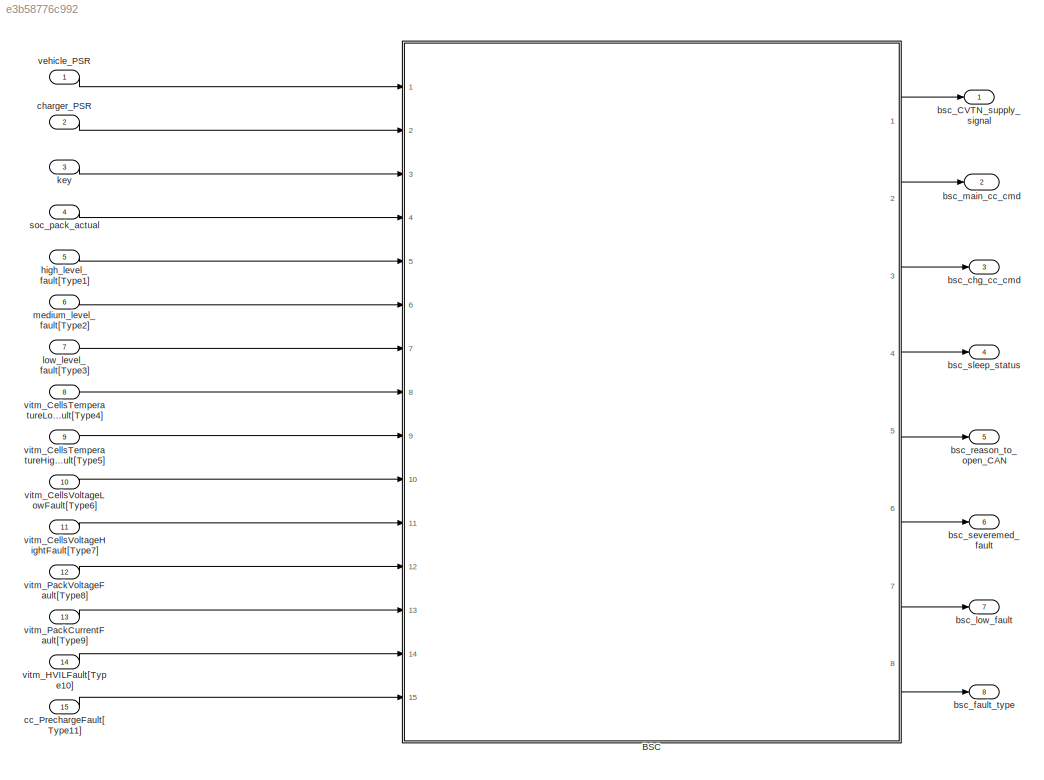
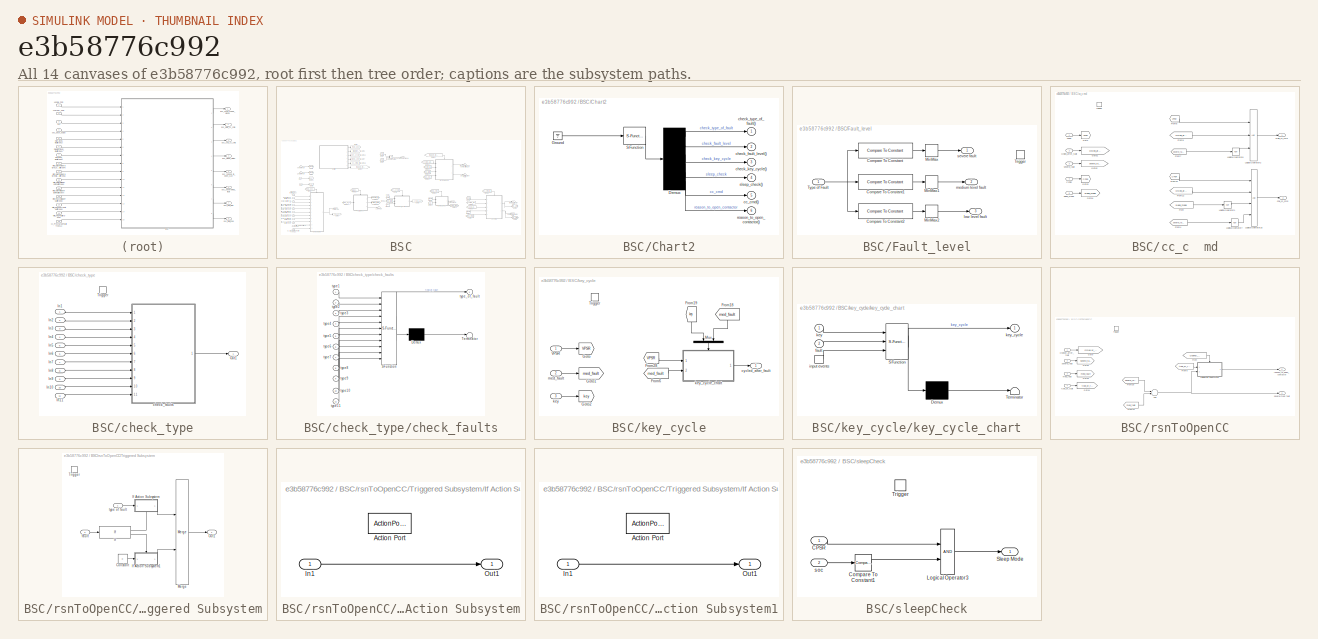
[diagram: thumbnail index - all 14 canvases of the model, root first then tree order]
MODEL slx_e3b58776c992
KIND model
CONFIG AbsTol = auto
CONFIG FixedStep = auto
CONFIG MaxStep = auto
CONFIG MinStep = auto
CONFIG RelTol = 1e-3
CONFIG SampleTimeConstraint = Unconstrained
CONFIG Solver = ode4
CONFIG SolverMode = Auto
CONFIG SolverName = ode4
CONFIG StartTime = 0.0
CONFIG StopTime = inf
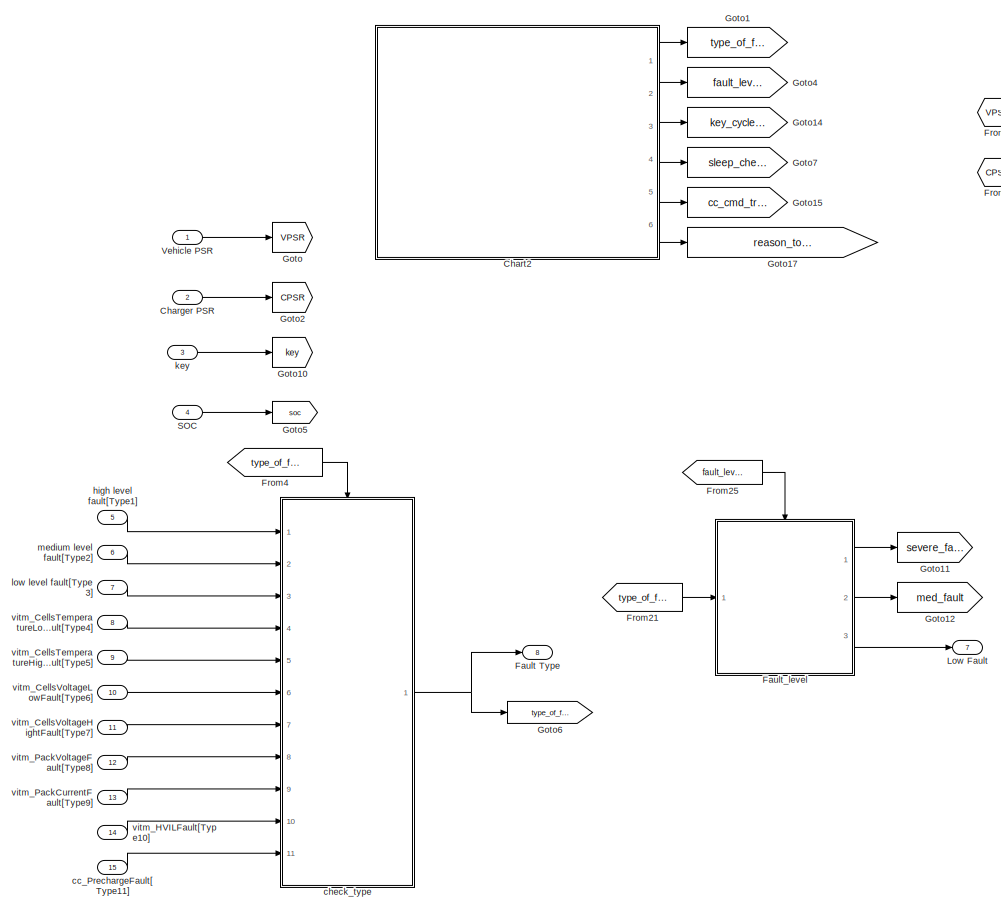
[diagram: BSC - part 1/2, left side, full height]
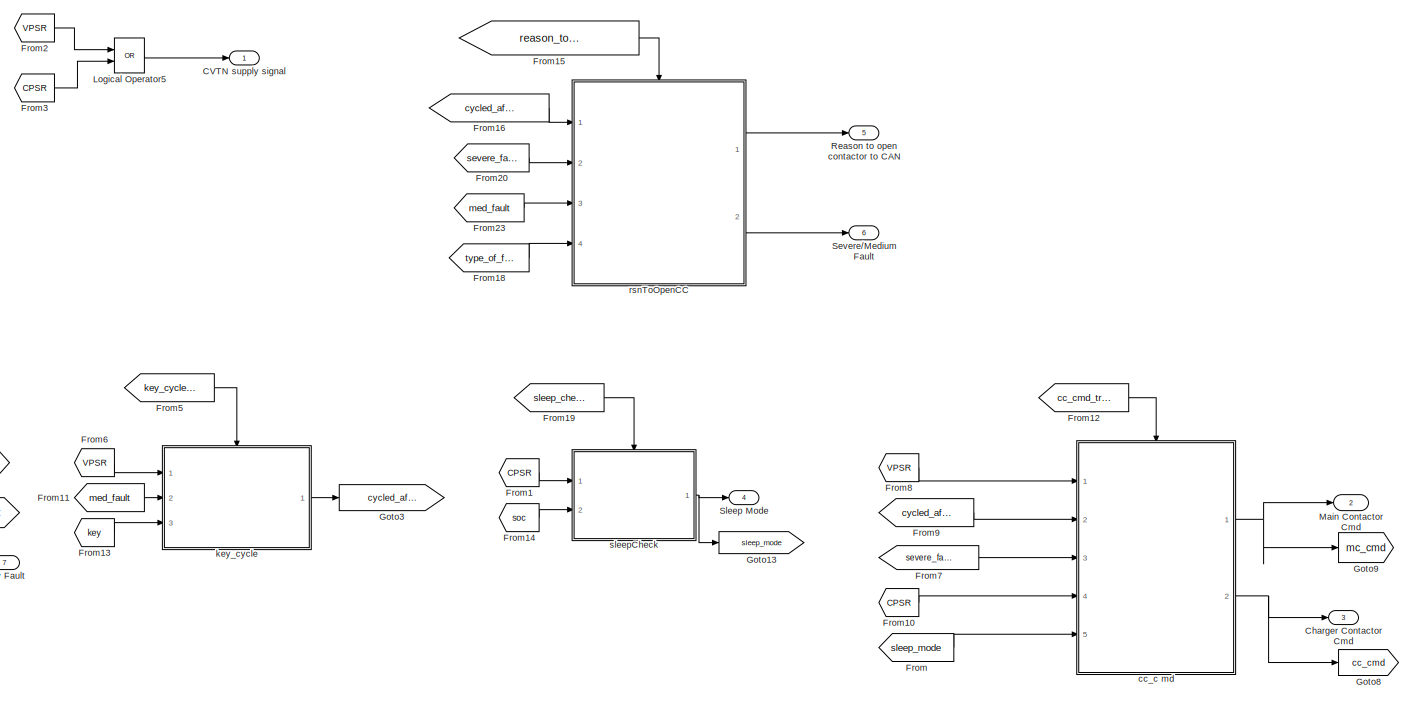
[diagram: BSC - part 2/2, right side, full height]
BLOCK [SubSystem] BSC
  Ports = [15, 8]
  RequestExecContextInheritance = off
  TreatAsAtomicUnit = on
  Variant = off
BLOCK [Outport] BSC/CVTN supply signal
  IconDisplay = Port number
  OutDataTypeStr = boolean
  PortDimensions = 1
  SamplingMode = Sample based
  SignalType = real
BLOCK [Outport] BSC/Charger Contactor Cmd
  IconDisplay = Port number
  OutDataTypeStr = boolean
  Port = 3
  PortDimensions = 1
  SamplingMode = Sample based
  SignalType = real
BLOCK [Inport] BSC/Charger PSR
  IconDisplay = Port number
  OutDataTypeStr = uint8
  Port = 2
  PortDimensions = 1
  SamplingMode = Sample based
  SignalType = real
BLOCK [SubSystem] BSC/Chart2
  ErrorFcn = Stateflow.Translate.translate
  PermitHierarchicalResolution = ExplicitOnly
  Ports = [0, 6]
  RequestExecContextInheritance = off
  SFBlockType = Chart
  TreatAsAtomicUnit = on
  Variant = off
BLOCK [Demux] BSC/Chart2/ Demux 
  Outputs = 6
  Ports = [1, 6]
BLOCK [Ground] BSC/Chart2/ Ground 
BLOCK [S-Function] BSC/Chart2/ SFunction 
  EnableBusSupport = on
  FunctionName = sf_sfun
  PortCounts = [1 1]
  Ports = [1, 1]
  SFunctionDeploymentMode = off
  Tag = Stateflow S-Function BSC_codegen 2
BLOCK [Outport] BSC/Chart2/cc_cmd()
  IconDisplay = Port number
  Port = 5
BLOCK [Outport] BSC/Chart2/check_fault_level()
  IconDisplay = Port number
  Port = 2
BLOCK [Outport] BSC/Chart2/check_key_cycle()
  IconDisplay = Port number
  Port = 3
BLOCK [Outport] BSC/Chart2/check_type_of_fault()
  IconDisplay = Port number
BLOCK [Outport] BSC/Chart2/reason_to_open_contactor()
  IconDisplay = Port number
  Port = 6
BLOCK [Outport] BSC/Chart2/sleep_check()
  IconDisplay = Port number
  Port = 4
BLOCK [Outport] BSC/Fault Type
  IconDisplay = Port number
  OutDataTypeStr = uint8
  Port = 8
  PortDimensions = 1
  SamplingMode = Sample based
  SignalType = real
BLOCK [SubSystem] BSC/Fault_level
  Ports = [1, 3, 0, 1]
  RequestExecContextInheritance = off
  Variant = off
BLOCK [Reference] BSC/Fault_level/Compare To Constant  REF=simulink/Logic and Bit
Operations/Compare
To Constant
  Ports = [1, 1]
  SourceBlock = simulink/Logic and Bit\nOperations/Compare\nTo Constant
  SourceType = Compare To Constant
BLOCK [Reference] BSC/Fault_level/Compare To Constant1  REF=simulink/Logic and Bit
Operations/Compare
To Constant
  Ports = [1, 1]
  SourceBlock = simulink/Logic and Bit\nOperations/Compare\nTo Constant
  SourceType = Compare To Constant
BLOCK [Reference] BSC/Fault_level/Compare To Constant2  REF=simulink/Logic and Bit
Operations/Compare
To Constant
  Ports = [1, 1]
  SourceBlock = simulink/Logic and Bit\nOperations/Compare\nTo Constant
  SourceType = Compare To Constant
BLOCK [MinMax] BSC/Fault_level/MinMax
  Function = max
  InputSameDT = off
  Ports = [1, 1]
  SaturateOnIntegerOverflow = off
BLOCK [MinMax] BSC/Fault_level/MinMax1
  Function = max
  InputSameDT = off
  Ports = [1, 1]
  SaturateOnIntegerOverflow = off
BLOCK [MinMax] BSC/Fault_level/MinMax2
  Function = max
  InputSameDT = off
  Ports = [1, 1]
  SaturateOnIntegerOverflow = off
BLOCK [TriggerPort] BSC/Fault_level/Trigger
  PortDimensions = 1
  Ports = []
  StatesWhenEnabling = held
  TriggerType = function-call
BLOCK [Inport] BSC/Fault_level/Type of Fault
  IconDisplay = Port number
BLOCK [Outport] BSC/Fault_level/low level fault
  IconDisplay = Port number
  Port = 3
BLOCK [Outport] BSC/Fault_level/medium level fault
  IconDisplay = Port number
  Port = 2
BLOCK [Outport] BSC/Fault_level/severe fault
  IconDisplay = Port number
BLOCK [From] BSC/From
  GotoTag = sleep_mode
BLOCK [From] BSC/From1
  GotoTag = CPSR
BLOCK [From] BSC/From10
  GotoTag = CPSR
BLOCK [From] BSC/From11
  GotoTag = med_fault
BLOCK [From] BSC/From12
  GotoTag = cc_cmd_trig
BLOCK [From] BSC/From13
  GotoTag = key
BLOCK [From] BSC/From14
  GotoTag = soc
BLOCK [From] BSC/From15
  GotoTag = reason_to_open_contactor_trig
BLOCK [From] BSC/From16
  GotoTag = cycled_after_fault
BLOCK [From] BSC/From18
  GotoTag = type_of_fault
BLOCK [From] BSC/From19
  GotoTag = sleep_check_trig
BLOCK [From] BSC/From2
  GotoTag = VPSR
BLOCK [From] BSC/From20
  GotoTag = severe_fault
BLOCK [From] BSC/From21
  GotoTag = type_of_fault
BLOCK [From] BSC/From23
  GotoTag = med_fault
BLOCK [From] BSC/From25
  GotoTag = fault_level_trig
BLOCK [From] BSC/From3
  GotoTag = CPSR
BLOCK [From] BSC/From4
  GotoTag = type_of_fault_trig
BLOCK [From] BSC/From5
  GotoTag = key_cycle_trig
BLOCK [From] BSC/From6
  GotoTag = VPSR
BLOCK [From] BSC/From7
  GotoTag = severe_fault
BLOCK [From] BSC/From8
  GotoTag = VPSR
BLOCK [From] BSC/From9
  GotoTag = cycled_after_fault
BLOCK [Goto] BSC/Goto
  GotoTag = VPSR
BLOCK [Goto] BSC/Goto1
  GotoTag = type_of_fault_trig
BLOCK [Goto] BSC/Goto10
  GotoTag = key
BLOCK [Goto] BSC/Goto11
  GotoTag = severe_fault
BLOCK [Goto] BSC/Goto12
  GotoTag = med_fault
BLOCK [Goto] BSC/Goto13
  GotoTag = sleep_mode
BLOCK [Goto] BSC/Goto14
  GotoTag = key_cycle_trig
BLOCK [Goto] BSC/Goto15
  GotoTag = cc_cmd_trig
BLOCK [Goto] BSC/Goto17
  GotoTag = reason_to_open_contactor_trig
BLOCK [Goto] BSC/Goto2
  GotoTag = CPSR
BLOCK [Goto] BSC/Goto3
  GotoTag = cycled_after_fault
BLOCK [Goto] BSC/Goto4
  GotoTag = fault_level_trig
BLOCK [Goto] BSC/Goto5
  GotoTag = soc
BLOCK [Goto] BSC/Goto6
  GotoTag = type_of_fault
BLOCK [Goto] BSC/Goto7
  GotoTag = sleep_check_trig
BLOCK [Goto] BSC/Goto8
  GotoTag = cc_cmd
BLOCK [Goto] BSC/Goto9
  GotoTag = mc_cmd
BLOCK [Logic] BSC/Logical Operator5
  AllPortsSameDT = off
  Operator = OR
  OutDataTypeStr = boolean
  Ports = [2, 1]
BLOCK [Outport] BSC/Low Fault
  IconDisplay = Port number
  OutDataTypeStr = uint8
  Port = 7
  PortDimensions = 1
  SamplingMode = Sample based
  SignalType = real
BLOCK [Outport] BSC/Main Contactor Cmd
  IconDisplay = Port number
  OutDataTypeStr = boolean
  Port = 2
  PortDimensions = 1
  SamplingMode = Sample based
  SignalType = real
BLOCK [Outport] BSC/Reason to open contactor to CAN
  IconDisplay = Port number
  OutDataTypeStr = uint8
  Port = 5
  PortDimensions = 1
  SamplingMode = Sample based
  SignalType = real
BLOCK [Inport] BSC/SOC
  IconDisplay = Port number
  OutDataTypeStr = double
  Port = 4
  PortDimensions = 1
  SamplingMode = Sample based
  SignalType = real
BLOCK [Outport] BSC/Severe//Medium Fault
  IconDisplay = Port number
  OutDataTypeStr = uint8
  Port = 6
  PortDimensions = 1
  SamplingMode = Sample based
  SignalType = real
BLOCK [Outport] BSC/Sleep Mode
  IconDisplay = Port number
  OutDataTypeStr = boolean
  Port = 4
  PortDimensions = 1
  SamplingMode = Sample based
  SignalType = real
BLOCK [Inport] BSC/Vehicle PSR
  IconDisplay = Port number
  OutDataTypeStr = uint8
  PortDimensions = 1
  SamplingMode = Sample based
  SignalType = real
BLOCK [Inport] BSC/cc_PrechargeFault[Type11]
  IconDisplay = Port number
  OutDataTypeStr = uint8
  Port = 15
  PortDimensions = 1
  SamplingMode = Sample based
  SignalType = real
BLOCK [SubSystem] BSC/cc_c  md
  Ports = [5, 2, 0, 1]
  RequestExecContextInheritance = off
  Variant = off
BLOCK [Inport] BSC/cc_c  md/CPSR
  IconDisplay = Port number
  Port = 4
BLOCK [From] BSC/cc_c  md/From
  GotoTag = sleep_mode
BLOCK [From] BSC/cc_c  md/From10
  GotoTag = CPSR
BLOCK [From] BSC/cc_c  md/From12
  GotoTag = cycled_after_fault
BLOCK [From] BSC/cc_c  md/From4
  GotoTag = severe_fault
BLOCK [From] BSC/cc_c  md/From7
  GotoTag = severe_fault
BLOCK [From] BSC/cc_c  md/From8
  GotoTag = VPSR
BLOCK [From] BSC/cc_c  md/From9
  GotoTag = cycled_after_fault
BLOCK [Goto] BSC/cc_c  md/Goto
  GotoTag = VPSR
BLOCK [Goto] BSC/cc_c  md/Goto1
  GotoTag = cycled_after_fault
BLOCK [Goto] BSC/cc_c  md/Goto2
  GotoTag = severe_fault
BLOCK [Goto] BSC/cc_c  md/Goto3
  GotoTag = CPSR
BLOCK [Goto] BSC/cc_c  md/Goto4
  GotoTag = sleep_mode
BLOCK [Logic] BSC/cc_c  md/Logical Operator1
  AllPortsSameDT = off
  Inputs = 1
  Operator = NOT
  OutDataTypeStr = boolean
  Ports = [1, 1]
BLOCK [Logic] BSC/cc_c  md/Logical Operator16
  AllPortsSameDT = off
  Inputs = 4
  OutDataTypeStr = boolean
  Ports = [4, 1]
BLOCK [Logic] BSC/cc_c  md/Logical Operator2
  AllPortsSameDT = off
  Inputs = 3
  OutDataTypeStr = boolean
  Ports = [3, 1]
BLOCK [Logic] BSC/cc_c  md/Logical Operator7
  AllPortsSameDT = off
  Inputs = 1
  Operator = NOT
  OutDataTypeStr = boolean
  Ports = [1, 1]
BLOCK [Logic] BSC/cc_c  md/Logical Operator8
  AllPortsSameDT = off
  Inputs = 1
  Operator = NOT
  OutDataTypeStr = boolean
  Ports = [1, 1]
BLOCK [TriggerPort] BSC/cc_c  md/Trigger
  PortDimensions = 1
  Ports = []
  StatesWhenEnabling = held
  TriggerType = function-call
BLOCK [Inport] BSC/cc_c  md/VPSR
  IconDisplay = Port number
BLOCK [Outport] BSC/cc_c  md/chg_cc_cmd
  IconDisplay = Port number
  Port = 2
BLOCK [Inport] BSC/cc_c  md/cycled_after_fault
  IconDisplay = Port number
  Port = 2
BLOCK [Outport] BSC/cc_c  md/main_cc_cmd
  IconDisplay = Port number
BLOCK [Inport] BSC/cc_c  md/severe_fault
  IconDisplay = Port number
  Port = 3
BLOCK [Inport] BSC/cc_c  md/sleep_mode
  IconDisplay = Port number
  Port = 5
BLOCK [SubSystem] BSC/check_type
  Ports = [11, 1, 0, 1]
  RequestExecContextInheritance = off
  Variant = off
BLOCK [Inport] BSC/check_type/In1
  IconDisplay = Port number
BLOCK [Inport] BSC/check_type/In10
  IconDisplay = Port number
  Port = 10
BLOCK [Inport] BSC/check_type/In11
  IconDisplay = Port number
  Port = 11
BLOCK [Inport] BSC/check_type/In2
  IconDisplay = Port number
  Port = 2
BLOCK [Inport] BSC/check_type/In3
  IconDisplay = Port number
  Port = 3
BLOCK [Inport] BSC/check_type/In4
  IconDisplay = Port number
  Port = 4
BLOCK [Inport] BSC/check_type/In5
  IconDisplay = Port number
  Port = 5
BLOCK [Inport] BSC/check_type/In6
  IconDisplay = Port number
  Port = 6
BLOCK [Inport] BSC/check_type/In7
  IconDisplay = Port number
  Port = 7
BLOCK [Inport] BSC/check_type/In8
  IconDisplay = Port number
  Port = 8
BLOCK [Inport] BSC/check_type/In9
  IconDisplay = Port number
  Port = 9
BLOCK [Outport] BSC/check_type/Out1
  IconDisplay = Port number
BLOCK [TriggerPort] BSC/check_type/Trigger
  PortDimensions = 1
  Ports = []
  StatesWhenEnabling = held
  TriggerType = function-call
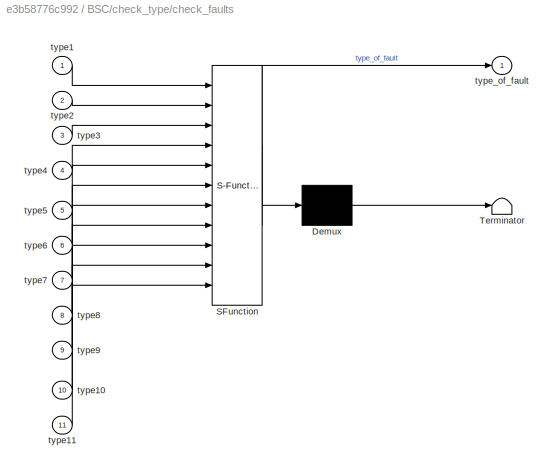
BLOCK [SubSystem] BSC/check_type/check_faults
  ErrorFcn = Stateflow.Translate.translate
  PermitHierarchicalResolution = ExplicitOnly
  Ports = [11, 1]
  RequestExecContextInheritance = off
  SFBlockType = Chart
  TreatAsAtomicUnit = on
  Variant = off
BLOCK [Demux] BSC/check_type/check_faults/ Demux 
  Outputs = 1
  Ports = [1, 1]
BLOCK [S-Function] BSC/check_type/check_faults/ SFunction 
  EnableBusSupport = on
  FunctionName = sf_sfun
  PortCounts = [11 2]
  Ports = [11, 2]
  SFunctionDeploymentMode = off
  Tag = Stateflow S-Function BSC_codegen 3
BLOCK [Terminator] BSC/check_type/check_faults/ Terminator 
BLOCK [Inport] BSC/check_type/check_faults/type1
  IconDisplay = Port number
BLOCK [Inport] BSC/check_type/check_faults/type10
  IconDisplay = Port number
  Port = 10
BLOCK [Inport] BSC/check_type/check_faults/type11
  IconDisplay = Port number
  Port = 11
BLOCK [Inport] BSC/check_type/check_faults/type2
  IconDisplay = Port number
  Port = 2
BLOCK [Inport] BSC/check_type/check_faults/type3
  IconDisplay = Port number
  Port = 3
BLOCK [Inport] BSC/check_type/check_faults/type4
  IconDisplay = Port number
  Port = 4
BLOCK [Inport] BSC/check_type/check_faults/type5
  IconDisplay = Port number
  Port = 5
BLOCK [Inport] BSC/check_type/check_faults/type6
  IconDisplay = Port number
  Port = 6
BLOCK [Inport] BSC/check_type/check_faults/type7
  IconDisplay = Port number
  Port = 7
BLOCK [Inport] BSC/check_type/check_faults/type8
  IconDisplay = Port number
  Port = 8
BLOCK [Inport] BSC/check_type/check_faults/type9
  IconDisplay = Port number
  Port = 9
BLOCK [Outport] BSC/check_type/check_faults/type_of_fault
  IconDisplay = Port number
BLOCK [Inport] BSC/high level fault[Type1]
  IconDisplay = Port number
  OutDataTypeStr = uint8
  Port = 5
  PortDimensions = 1
  SamplingMode = Sample based
  SignalType = real
BLOCK [Inport] BSC/key
  IconDisplay = Port number
  OutDataTypeStr = uint8
  Port = 3
  PortDimensions = 1
  SamplingMode = Sample based
  SignalType = real
BLOCK [SubSystem] BSC/key_cycle
  Ports = [3, 1, 0, 1]
  RequestExecContextInheritance = off
  Variant = off
BLOCK [From] BSC/key_cycle/From18
  GotoTag = med_fault
BLOCK [From] BSC/key_cycle/From19
  GotoTag = key
BLOCK [From] BSC/key_cycle/From28
  GotoTag = VPSR
BLOCK [From] BSC/key_cycle/From6
  GotoTag = med_fault
BLOCK [Goto] BSC/key_cycle/Goto
  GotoTag = VPSR
BLOCK [Goto] BSC/key_cycle/Goto1
  GotoTag = med_fault
BLOCK [Goto] BSC/key_cycle/Goto2
  GotoTag = key
BLOCK [Mux] BSC/key_cycle/Mux
  DisplayOption = bar
  Inputs = 2
  Ports = [2, 1]
BLOCK [TriggerPort] BSC/key_cycle/Trigger
  PortDimensions = 1
  Ports = []
  StatesWhenEnabling = held
  TriggerType = function-call
BLOCK [Inport] BSC/key_cycle/VPSR
  IconDisplay = Port number
BLOCK [Outport] BSC/key_cycle/cycled_after_fault
  IconDisplay = Port number
BLOCK [Inport] BSC/key_cycle/key
  IconDisplay = Port number
  Port = 3
BLOCK [SubSystem] BSC/key_cycle/key_cycle_chart
  ErrorFcn = Stateflow.Translate.translate
  PermitHierarchicalResolution = ExplicitOnly
  Ports = [2, 1, 0, 1]
  RequestExecContextInheritance = off
  SFBlockType = Chart
  TreatAsAtomicUnit = on
  Variant = off
BLOCK [Demux] BSC/key_cycle/key_cycle_chart/ Demux 
  Outputs = 1
  Ports = [1, 1]
BLOCK [S-Function] BSC/key_cycle/key_cycle_chart/ SFunction 
  EnableBusSupport = on
  FunctionName = sf_sfun
  PortCounts = [3 2]
  Ports = [3, 2]
  SFunctionDeploymentMode = off
  Tag = Stateflow S-Function BSC_codegen 1
BLOCK [Terminator] BSC/key_cycle/key_cycle_chart/ Terminator 
BLOCK [Inport] BSC/key_cycle/key_cycle_chart/fault
  IconDisplay = Port number
  Port = 2
BLOCK [TriggerPort] BSC/key_cycle/key_cycle_chart/input events
  Ports = [0, 1]
  ShowOutputPort = on
  StatesWhenEnabling = held
  TriggerType = either
BLOCK [Inport] BSC/key_cycle/key_cycle_chart/key
  IconDisplay = Port number
BLOCK [Outport] BSC/key_cycle/key_cycle_chart/key_cycle
  IconDisplay = Port number
BLOCK [Inport] BSC/key_cycle/med_fault
  IconDisplay = Port number
  Port = 2
BLOCK [Inport] BSC/low level fault[Type3]
  IconDisplay = Port number
  OutDataTypeStr = uint8
  Port = 7
  PortDimensions = 1
  SamplingMode = Sample based
  SignalType = real
BLOCK [Inport] BSC/medium level fault[Type2]
  IconDisplay = Port number
  OutDataTypeStr = uint8
  Port = 6
  PortDimensions = 1
  SamplingMode = Sample based
  SignalType = real
BLOCK [SubSystem] BSC/rsnToOpenCC
  Ports = [4, 2, 0, 1]
  RequestExecContextInheritance = off
  Variant = off
BLOCK [Sum] BSC/rsnToOpenCC/Add
  AccumDataTypeStr = uint8
  OutDataTypeStr = uint8
  Ports = [2, 1]
  SaturateOnIntegerOverflow = off
BLOCK [From] BSC/rsnToOpenCC/From
  GotoTag = cycleKey_after_fault
BLOCK [From] BSC/rsnToOpenCC/From20
  GotoTag = severe_fault
BLOCK [From] BSC/rsnToOpenCC/From23
  GotoTag = med_fault
BLOCK [From] BSC/rsnToOpenCC/From5
  GotoTag = type_of_fault
BLOCK [Goto] BSC/rsnToOpenCC/Goto
  GotoTag = cycleKey_after_fault
BLOCK [Goto] BSC/rsnToOpenCC/Goto2
  GotoTag = severe_fault
BLOCK [Goto] BSC/rsnToOpenCC/Goto3
  GotoTag = med_fault
BLOCK [Goto] BSC/rsnToOpenCC/Goto4
  GotoTag = type_of_fault
BLOCK [TriggerPort] BSC/rsnToOpenCC/Trigger
  PortDimensions = 1
  Ports = []
  StatesWhenEnabling = held
  TriggerType = function-call
BLOCK [SubSystem] BSC/rsnToOpenCC/Triggered Subsystem
  Ports = [2, 1, 0, 1]
  RequestExecContextInheritance = off
  TreatAsAtomicUnit = on
  Variant = off
BLOCK [Constant] BSC/rsnToOpenCC/Triggered Subsystem/Constant
  OutDataTypeStr = uint8
  Value = 0
BLOCK [If] BSC/rsnToOpenCC/Triggered Subsystem/If
  Ports = [1, 2]
BLOCK [SubSystem] BSC/rsnToOpenCC/Triggered Subsystem/If Action Subsystem
  Ports = [1, 1, 0, 0, 0, 0, 0, 1]
  RequestExecContextInheritance = off
  TreatAsAtomicUnit = on
  Variant = off
BLOCK [ActionPort] BSC/rsnToOpenCC/Triggered Subsystem/If Action Subsystem/Action Port
  ActionType = then
BLOCK [Inport] BSC/rsnToOpenCC/Triggered Subsystem/If Action Subsystem/In1
  IconDisplay = Port number
BLOCK [Outport] BSC/rsnToOpenCC/Triggered Subsystem/If Action Subsystem/Out1
  IconDisplay = Port number
BLOCK [SubSystem] BSC/rsnToOpenCC/Triggered Subsystem/If Action Subsystem1
  Ports = [1, 1, 0, 0, 0, 0, 0, 1]
  RequestExecContextInheritance = off
  TreatAsAtomicUnit = on
  Variant = off
BLOCK [ActionPort] BSC/rsnToOpenCC/Triggered Subsystem/If Action Subsystem1/Action Port
  ActionType = else
BLOCK [Inport] BSC/rsnToOpenCC/Triggered Subsystem/If Action Subsystem1/In1
  IconDisplay = Port number
BLOCK [Outport] BSC/rsnToOpenCC/Triggered Subsystem/If Action Subsystem1/Out1
  IconDisplay = Port number
BLOCK [Merge] BSC/rsnToOpenCC/Triggered Subsystem/Merge
  Ports = [2, 1]
BLOCK [Outport] BSC/rsnToOpenCC/Triggered Subsystem/Out1
  IconDisplay = Port number
BLOCK [TriggerPort] BSC/rsnToOpenCC/Triggered Subsystem/Trigger
  Ports = []
  StatesWhenEnabling = held
  TriggerType = either
BLOCK [Inport] BSC/rsnToOpenCC/Triggered Subsystem/fault
  IconDisplay = Port number
  Port = 2
BLOCK [Inport] BSC/rsnToOpenCC/Triggered Subsystem/type of fault
  IconDisplay = Port number
BLOCK [Inport] BSC/rsnToOpenCC/cycleKey_after_fault
  IconDisplay = Port number
BLOCK [Inport] BSC/rsnToOpenCC/med_fault
  IconDisplay = Port number
  Port = 3
BLOCK [Outport] BSC/rsnToOpenCC/reason_to_open_contactor
  IconDisplay = Port number
BLOCK [Outport] BSC/rsnToOpenCC/severe//med fault
  IconDisplay = Port number
  Port = 2
BLOCK [Inport] BSC/rsnToOpenCC/severe_fault
  IconDisplay = Port number
  Port = 2
BLOCK [Inport] BSC/rsnToOpenCC/type_of_fault
  IconDisplay = Port number
  Port = 4
BLOCK [SubSystem] BSC/sleepCheck
  Ports = [2, 1, 0, 1]
  RequestExecContextInheritance = off
  Variant = off
BLOCK [Inport] BSC/sleepCheck/CPSR
  IconDisplay = Port number
BLOCK [Reference] BSC/sleepCheck/Compare To Constant1  REF=simulink/Logic and Bit
Operations/Compare
To Constant
  Ports = [1, 1]
  SourceBlock = simulink/Logic and Bit\nOperations/Compare\nTo Constant
  SourceType = Compare To Constant
BLOCK [Logic] BSC/sleepCheck/Logical Operator3
  AllPortsSameDT = off
  OutDataTypeStr = boolean
  Ports = [2, 1]
BLOCK [Outport] BSC/sleepCheck/Sleep Mode
  IconDisplay = Port number
  OutDataTypeStr = boolean
  PortDimensions = 1
  SamplingMode = Sample based
  SignalType = real
BLOCK [TriggerPort] BSC/sleepCheck/Trigger
  PortDimensions = 1
  Ports = []
  StatesWhenEnabling = held
  TriggerType = function-call
BLOCK [Inport] BSC/sleepCheck/soc
  IconDisplay = Port number
  Port = 2
BLOCK [Inport] BSC/vitm_CellsTemperatureHighFault[Type5]
  IconDisplay = Port number
  OutDataTypeStr = uint8
  Port = 9
  PortDimensions = 1
  SamplingMode = Sample based
  SignalType = real
BLOCK [Inport] BSC/vitm_CellsTemperatureLowFault[Type4]
  IconDisplay = Port number
  OutDataTypeStr = uint8
  Port = 8
  PortDimensions = 1
  SamplingMode = Sample based
  SignalType = real
BLOCK [Inport] BSC/vitm_CellsVoltageHightFault[Type7]
  IconDisplay = Port number
  OutDataTypeStr = uint8
  Port = 11
  PortDimensions = 1
  SamplingMode = Sample based
  SignalType = real
BLOCK [Inport] BSC/vitm_CellsVoltageLowFault[Type6]
  IconDisplay = Port number
  OutDataTypeStr = uint8
  Port = 10
  PortDimensions = 1
  SamplingMode = Sample based
  SignalType = real
BLOCK [Inport] BSC/vitm_HVILFault[Type10]
  IconDisplay = Port number
  OutDataTypeStr = uint8
  Port = 14
  PortDimensions = 1
  SamplingMode = Sample based
  SignalType = real
BLOCK [Inport] BSC/vitm_PackCurrentFault[Type9]
  IconDisplay = Port number
  OutDataTypeStr = uint8
  Port = 13
  PortDimensions = 1
  SamplingMode = Sample based
  SignalType = real
BLOCK [Inport] BSC/vitm_PackVoltageFault[Type8]
  IconDisplay = Port number
  OutDataTypeStr = uint8
  Port = 12
  PortDimensions = 1
  SamplingMode = Sample based
  SignalType = real
BLOCK [Outport] bsc_CVTN_supply_signal
  IconDisplay = Port number
  OutDataTypeStr = boolean
  PortDimensions = 1
  SamplingMode = Sample based
  SignalType = real
BLOCK [Outport] bsc_chg_cc_cmd
  IconDisplay = Port number
  OutDataTypeStr = boolean
  Port = 3
  PortDimensions = 1
  SamplingMode = Sample based
  SignalType = real
BLOCK [Outport] bsc_fault_type
  IconDisplay = Port number
  OutDataTypeStr = uint8
  Port = 8
  PortDimensions = 1
  SamplingMode = Sample based
  SignalType = real
BLOCK [Outport] bsc_low_fault
  IconDisplay = Port number
  OutDataTypeStr = uint8
  Port = 7
  PortDimensions = 1
  SamplingMode = Sample based
  SignalType = real
BLOCK [Outport] bsc_main_cc_cmd
  IconDisplay = Port number
  OutDataTypeStr = boolean
  Port = 2
  PortDimensions = 1
  SamplingMode = Sample based
  SignalType = real
BLOCK [Outport] bsc_reason_to_open_CAN
  IconDisplay = Port number
  OutDataTypeStr = uint8
  Port = 5
  PortDimensions = 1
  SamplingMode = Sample based
  SignalType = real
BLOCK [Outport] bsc_severemed_fault
  IconDisplay = Port number
  OutDataTypeStr = uint8
  Port = 6
  PortDimensions = 1
  SamplingMode = Sample based
  SignalType = real
BLOCK [Outport] bsc_sleep_status
  IconDisplay = Port number
  OutDataTypeStr = boolean
  Port = 4
  PortDimensions = 1
  SamplingMode = Sample based
  SignalType = real
BLOCK [Inport] cc_PrechargeFault[Type11]
  IconDisplay = Port number
  OutDataTypeStr = uint8
  Port = 15
  PortDimensions = 1
  SamplingMode = Sample based
  SignalType = real
BLOCK [Inport] charger_PSR
  IconDisplay = Port number
  OutDataTypeStr = uint8
  Port = 2
  PortDimensions = 1
  SamplingMode = Sample based
  SignalType = real
BLOCK [Inport] high_level_fault[Type1]
  IconDisplay = Port number
  OutDataTypeStr = uint8
  Port = 5
  PortDimensions = 1
  SamplingMode = Sample based
  SignalType = real
BLOCK [Inport] key
  IconDisplay = Port number
  OutDataTypeStr = uint8
  Port = 3
  PortDimensions = 1
  SamplingMode = Sample based
  SignalType = real
BLOCK [Inport] low_level_fault[Type3]
  IconDisplay = Port number
  OutDataTypeStr = uint8
  Port = 7
  PortDimensions = 1
  SamplingMode = Sample based
  SignalType = real
BLOCK [Inport] medium_level_fault[Type2]
  IconDisplay = Port number
  OutDataTypeStr = uint8
  Port = 6
  PortDimensions = 1
  SamplingMode = Sample based
  SignalType = real
BLOCK [Inport] soc_pack_actual
  IconDisplay = Port number
  OutDataTypeStr = double
  Port = 4
  PortDimensions = 1
  SamplingMode = Sample based
  SignalType = real
BLOCK [Inport] vehicle_PSR
  IconDisplay = Port number
  OutDataTypeStr = uint8
  PortDimensions = 1
  SamplingMode = Sample based
  SignalType = real
BLOCK [Inport] vitm_CellsTemperatureHighFault[Type5]
  IconDisplay = Port number
  OutDataTypeStr = uint8
  Port = 9
  PortDimensions = 1
  SamplingMode = Sample based
  SignalType = real
BLOCK [Inport] vitm_CellsTemperatureLowFault[Type4]
  IconDisplay = Port number
  OutDataTypeStr = uint8
  Port = 8
  PortDimensions = 1
  SamplingMode = Sample based
  SignalType = real
BLOCK [Inport] vitm_CellsVoltageHightFault[Type7]
  IconDisplay = Port number
  OutDataTypeStr = uint8
  Port = 11
  PortDimensions = 1
  SamplingMode = Sample based
  SignalType = real
BLOCK [Inport] vitm_CellsVoltageLowFault[Type6]
  IconDisplay = Port number
  OutDataTypeStr = uint8
  Port = 10
  PortDimensions = 1
  SamplingMode = Sample based
  SignalType = real
BLOCK [Inport] vitm_HVILFault[Type10]
  IconDisplay = Port number
  OutDataTypeStr = uint8
  Port = 14
  PortDimensions = 1
  SamplingMode = Sample based
  SignalType = real
BLOCK [Inport] vitm_PackCurrentFault[Type9]
  IconDisplay = Port number
  OutDataTypeStr = uint8
  Port = 13
  PortDimensions = 1
  SamplingMode = Sample based
  SignalType = real
BLOCK [Inport] vitm_PackVoltageFault[Type8]
  IconDisplay = Port number
  OutDataTypeStr = uint8
  Port = 12
  PortDimensions = 1
  SamplingMode = Sample based
  SignalType = real
LINE BSC/Charger PSR:1 -> BSC/Goto2:1
LINE BSC/Chart2:1 -> BSC/Goto1:1
LINE BSC/Chart2:2 -> BSC/Goto4:1
LINE BSC/Chart2:3 -> BSC/Goto14:1
LINE BSC/Chart2:4 -> BSC/Goto7:1
LINE BSC/Chart2:5 -> BSC/Goto15:1
LINE BSC/Chart2:6 -> BSC/Goto17:1
LINE BSC/Fault_level/Compare To Constant1:1 -> BSC/Fault_level/MinMax1:1
LINE BSC/Fault_level/Compare To Constant2:1 -> BSC/Fault_level/MinMax2:1
LINE BSC/Fault_level/Compare To Constant:1 -> BSC/Fault_level/MinMax:1
LINE BSC/Fault_level/MinMax1:1 -> BSC/Fault_level/medium level fault:1
LINE BSC/Fault_level/MinMax2:1 -> BSC/Fault_level/low level fault:1
LINE BSC/Fault_level/MinMax:1 -> BSC/Fault_level/severe fault:1
NET BSC/Fault_level/Type of Fault:1 -> BSC/Fault_level/Compare To Constant1:1, BSC/Fault_level/Compare To Constant2:1, BSC/Fault_level/Compare To Constant:1
LINE BSC/Fault_level:1 -> BSC/Goto11:1
LINE BSC/Fault_level:2 -> BSC/Goto12:1
LINE BSC/Fault_level:3 -> BSC/Low Fault:1
LINE BSC/From10:1 -> BSC/cc_c  md:4
LINE BSC/From11:1 -> BSC/key_cycle:2
LINE BSC/From12:1 -> BSC/cc_c  md:trigger
LINE BSC/From13:1 -> BSC/key_cycle:3
LINE BSC/From14:1 -> BSC/sleepCheck:2
LINE BSC/From15:1 -> BSC/rsnToOpenCC:trigger
LINE BSC/From16:1 -> BSC/rsnToOpenCC:1
LINE BSC/From18:1 -> BSC/rsnToOpenCC:4
LINE BSC/From19:1 -> BSC/sleepCheck:trigger
LINE BSC/From1:1 -> BSC/sleepCheck:1
LINE BSC/From20:1 -> BSC/rsnToOpenCC:2
LINE BSC/From21:1 -> BSC/Fault_level:1
LINE BSC/From23:1 -> BSC/rsnToOpenCC:3
LINE BSC/From25:1 -> BSC/Fault_level:trigger
LINE BSC/From2:1 -> BSC/Logical Operator5:1
LINE BSC/From3:1 -> BSC/Logical Operator5:2
LINE BSC/From4:1 -> BSC/check_type:trigger
LINE BSC/From5:1 -> BSC/key_cycle:trigger
LINE BSC/From6:1 -> BSC/key_cycle:1
LINE BSC/From7:1 -> BSC/cc_c  md:3
LINE BSC/From8:1 -> BSC/cc_c  md:1
LINE BSC/From9:1 -> BSC/cc_c  md:2
LINE BSC/From:1 -> BSC/cc_c  md:5
LINE BSC/Logical Operator5:1 -> BSC/CVTN supply signal:1
LINE BSC/SOC:1 -> BSC/Goto5:1
LINE BSC/Vehicle PSR:1 -> BSC/Goto:1
LINE BSC/cc_PrechargeFault[Type11]:1 -> BSC/check_type:11
LINE BSC/cc_c  md/CPSR:1 -> BSC/cc_c  md/Goto3:1
LINE BSC/cc_c  md/From10:1 -> BSC/cc_c  md/Logical Operator16:1
LINE BSC/cc_c  md/From12:1 -> BSC/cc_c  md/Logical Operator16:2
LINE BSC/cc_c  md/From4:1 -> BSC/cc_c  md/Logical Operator7:1
LINE BSC/cc_c  md/From7:1 -> BSC/cc_c  md/Logical Operator8:1
LINE BSC/cc_c  md/From8:1 -> BSC/cc_c  md/Logical Operator2:1
LINE BSC/cc_c  md/From9:1 -> BSC/cc_c  md/Logical Operator2:2
LINE BSC/cc_c  md/From:1 -> BSC/cc_c  md/Logical Operator1:1
LINE BSC/cc_c  md/Logical Operator16:1 -> BSC/cc_c  md/chg_cc_cmd:1
LINE BSC/cc_c  md/Logical Operator1:1 -> BSC/cc_c  md/Logical Operator16:3
LINE BSC/cc_c  md/Logical Operator2:1 -> BSC/cc_c  md/main_cc_cmd:1
LINE BSC/cc_c  md/Logical Operator7:1 -> BSC/cc_c  md/Logical Operator16:4
LINE BSC/cc_c  md/Logical Operator8:1 -> BSC/cc_c  md/Logical Operator2:3
LINE BSC/cc_c  md/VPSR:1 -> BSC/cc_c  md/Goto:1
LINE BSC/cc_c  md/cycled_after_fault:1 -> BSC/cc_c  md/Goto1:1
LINE BSC/cc_c  md/severe_fault:1 -> BSC/cc_c  md/Goto2:1
LINE BSC/cc_c  md/sleep_mode:1 -> BSC/cc_c  md/Goto4:1
NET BSC/cc_c  md:1 -> BSC/Goto9:1, BSC/Main Contactor Cmd:1
NET BSC/cc_c  md:2 -> BSC/Charger Contactor Cmd:1, BSC/Goto8:1
LINE BSC/check_type/In10:1 -> BSC/check_type/check_faults:10
LINE BSC/check_type/In11:1 -> BSC/check_type/check_faults:11
LINE BSC/check_type/In1:1 -> BSC/check_type/check_faults:1
LINE BSC/check_type/In2:1 -> BSC/check_type/check_faults:2
LINE BSC/check_type/In3:1 -> BSC/check_type/check_faults:3
LINE BSC/check_type/In4:1 -> BSC/check_type/check_faults:4
LINE BSC/check_type/In5:1 -> BSC/check_type/check_faults:5
LINE BSC/check_type/In6:1 -> BSC/check_type/check_faults:6
LINE BSC/check_type/In7:1 -> BSC/check_type/check_faults:7
LINE BSC/check_type/In8:1 -> BSC/check_type/check_faults:8
LINE BSC/check_type/In9:1 -> BSC/check_type/check_faults:9
LINE BSC/check_type/check_faults:1 -> BSC/check_type/Out1:1
NET BSC/check_type:1 -> BSC/Fault Type:1, BSC/Goto6:1
LINE BSC/high level fault[Type1]:1 -> BSC/check_type:1
LINE BSC/key:1 -> BSC/Goto10:1
LINE BSC/key_cycle/From18:1 -> BSC/key_cycle/Mux:2
LINE BSC/key_cycle/From19:1 -> BSC/key_cycle/Mux:1
LINE BSC/key_cycle/From28:1 -> BSC/key_cycle/key_cycle_chart:1
LINE BSC/key_cycle/From6:1 -> BSC/key_cycle/key_cycle_chart:2
LINE BSC/key_cycle/Mux:1 -> BSC/key_cycle/key_cycle_chart:trigger
LINE BSC/key_cycle/VPSR:1 -> BSC/key_cycle/Goto:1
LINE BSC/key_cycle/key:1 -> BSC/key_cycle/Goto2:1
LINE BSC/key_cycle/key_cycle_chart:1 -> BSC/key_cycle/cycled_after_fault:1
LINE BSC/key_cycle/med_fault:1 -> BSC/key_cycle/Goto1:1
LINE BSC/key_cycle:1 -> BSC/Goto3:1
LINE BSC/low level fault[Type3]:1 -> BSC/check_type:3
LINE BSC/medium level fault[Type2]:1 -> BSC/check_type:2
NET BSC/rsnToOpenCC/Add:1 -> BSC/rsnToOpenCC/Triggered Subsystem:2, BSC/rsnToOpenCC/severe//med fault:1
LINE BSC/rsnToOpenCC/From20:1 -> BSC/rsnToOpenCC/Add:1
LINE BSC/rsnToOpenCC/From23:1 -> BSC/rsnToOpenCC/Add:2
LINE BSC/rsnToOpenCC/From5:1 -> BSC/rsnToOpenCC/Triggered Subsystem:1
LINE BSC/rsnToOpenCC/From:1 -> BSC/rsnToOpenCC/Triggered Subsystem:trigger
LINE BSC/rsnToOpenCC/Triggered Subsystem/Constant:1 -> BSC/rsnToOpenCC/Triggered Subsystem/If Action Subsystem1:1
LINE BSC/rsnToOpenCC/Triggered Subsystem/If Action Subsystem/In1:1 -> BSC/rsnToOpenCC/Triggered Subsystem/If Action Subsystem/Out1:1
LINE BSC/rsnToOpenCC/Triggered Subsystem/If Action Subsystem1/In1:1 -> BSC/rsnToOpenCC/Triggered Subsystem/If Action Subsystem1/Out1:1
LINE BSC/rsnToOpenCC/Triggered Subsystem/If Action Subsystem1:1 -> BSC/rsnToOpenCC/Triggered Subsystem/Merge:2
LINE BSC/rsnToOpenCC/Triggered Subsystem/If Action Subsystem:1 -> BSC/rsnToOpenCC/Triggered Subsystem/Merge:1
LINE BSC/rsnToOpenCC/Triggered Subsystem/If:1 -> BSC/rsnToOpenCC/Triggered Subsystem/If Action Subsystem:ifaction
LINE BSC/rsnToOpenCC/Triggered Subsystem/If:2 -> BSC/rsnToOpenCC/Triggered Subsystem/If Action Subsystem1:ifaction
LINE BSC/rsnToOpenCC/Triggered Subsystem/Merge:1 -> BSC/rsnToOpenCC/Triggered Subsystem/Out1:1
LINE BSC/rsnToOpenCC/Triggered Subsystem/fault:1 -> BSC/rsnToOpenCC/Triggered Subsystem/If:1
LINE BSC/rsnToOpenCC/Triggered Subsystem/type of fault:1 -> BSC/rsnToOpenCC/Triggered Subsystem/If Action Subsystem:1
LINE BSC/rsnToOpenCC/Triggered Subsystem:1 -> BSC/rsnToOpenCC/reason_to_open_contactor:1
LINE BSC/rsnToOpenCC/cycleKey_after_fault:1 -> BSC/rsnToOpenCC/Goto:1
LINE BSC/rsnToOpenCC/med_fault:1 -> BSC/rsnToOpenCC/Goto3:1
LINE BSC/rsnToOpenCC/severe_fault:1 -> BSC/rsnToOpenCC/Goto2:1
LINE BSC/rsnToOpenCC/type_of_fault:1 -> BSC/rsnToOpenCC/Goto4:1
LINE BSC/rsnToOpenCC:1 -> BSC/Reason to open contactor to CAN:1
LINE BSC/rsnToOpenCC:2 -> BSC/Severe//Medium Fault:1
LINE BSC/sleepCheck/CPSR:1 -> BSC/sleepCheck/Logical Operator3:1
LINE BSC/sleepCheck/Compare To Constant1:1 -> BSC/sleepCheck/Logical Operator3:2
LINE BSC/sleepCheck/Logical Operator3:1 -> BSC/sleepCheck/Sleep Mode:1
LINE BSC/sleepCheck/soc:1 -> BSC/sleepCheck/Compare To Constant1:1
NET BSC/sleepCheck:1 -> BSC/Goto13:1, BSC/Sleep Mode:1
LINE BSC/vitm_CellsTemperatureHighFault[Type5]:1 -> BSC/check_type:5
LINE BSC/vitm_CellsTemperatureLowFault[Type4]:1 -> BSC/check_type:4
LINE BSC/vitm_CellsVoltageHightFault[Type7]:1 -> BSC/check_type:7
LINE BSC/vitm_CellsVoltageLowFault[Type6]:1 -> BSC/check_type:6
LINE BSC/vitm_HVILFault[Type10]:1 -> BSC/check_type:10
LINE BSC/vitm_PackCurrentFault[Type9]:1 -> BSC/check_type:9
LINE BSC/vitm_PackVoltageFault[Type8]:1 -> BSC/check_type:8
LINE BSC:1 -> bsc_CVTN_supply_signal:1
LINE BSC:2 -> bsc_main_cc_cmd:1
LINE BSC:3 -> bsc_chg_cc_cmd:1
LINE BSC:4 -> bsc_sleep_status:1
LINE BSC:5 -> bsc_reason_to_open_CAN:1
LINE BSC:6 -> bsc_severemed_fault:1
LINE BSC:7 -> bsc_low_fault:1
LINE BSC:8 -> bsc_fault_type:1
LINE cc_PrechargeFault[Type11]:1 -> BSC:15
LINE charger_PSR:1 -> BSC:2
LINE high_level_fault[Type1]:1 -> BSC:5
LINE key:1 -> BSC:3
LINE low_level_fault[Type3]:1 -> BSC:7
LINE medium_level_fault[Type2]:1 -> BSC:6
LINE soc_pack_actual:1 -> BSC:4
LINE vehicle_PSR:1 -> BSC:1
LINE vitm_CellsTemperatureHighFault[Type5]:1 -> BSC:9
LINE vitm_CellsTemperatureLowFault[Type4]:1 -> BSC:8
LINE vitm_CellsVoltageHightFault[Type7]:1 -> BSC:11
LINE vitm_CellsVoltageLowFault[Type6]:1 -> BSC:10
LINE vitm_HVILFault[Type10]:1 -> BSC:14
LINE vitm_PackCurrentFault[Type9]:1 -> BSC:13
LINE vitm_PackVoltageFault[Type8]:1 -> BSC:12
note: NET lines group one-source signal fan-out (src -> all destinations, sorted); 1:1 wires keep LINE
CHART BSC/key_cycle/key_cycle_chart states=3 transitions=51
  STATE_LABEL 'inital_key_off_fault\nentry:\nkey_cycle = 0;\noff_fault = 1;'
  STATE_LABEL 'Key_OFF\nentry:\nkey_state = OFF;\n\n\n\n\n\n\n\n\n\n\n\n\n\n\n\n\n\n\n\n\n\n\n\n\n\n\n\n\n\n\n\n\n\n\nexit:\non_fault = 0 ;\n\n\n'
  STATE_LABEL 'key_change [on_fault==0]'
  STATE_LABEL '{off_store = off_store+1;}'
  STATE_LABEL '[off_store>1]'
  STATE_LABEL '{off_store=1;}'
  STATE_LABEL '[fault==1]'
  STATE_LABEL '{key_cycle = 0;\noff_store=0;\non_store=0;\noff_fault = 1 ;}'
  STATE_LABEL '[off_store==1]'
  STATE_LABEL '{key_cycle = 1;}'
  STATE_LABEL 'Key_ON\nentry:\nkey_state = ON\n\n\n\n\n\n\n\n\n\n\n\n\n\n\n\n\n\n\n\n\n\n\n\n\n\n\n\n\n\n\n\n\n\nexit:\noff_fault = 0 ;\n '
  STATE_LABEL 'key_change [off_fault==0]'
  STATE_LABEL '{on_store = on_store+1;}'
  STATE_LABEL '[on_store>1]'
  STATE_LABEL '{on_store=1;}'
  STATE_LABEL '[fault==1]'
  STATE_LABEL '{key_cycle = 0;\non_store=0;\noff_store=0;\non_fault = 1 ;}'
  STATE_LABEL '[on_store==1]'
  STATE_LABEL '{key_cycle = 1;}'
CHART BSC/Chart2 states=1 transitions=8
  STATE_LABEL 'main'
  STATE_LABEL '{check_type_of_fault;}'
  STATE_LABEL '{check_fault_level;}'
  STATE_LABEL '{check_key_cycle;}'
  STATE_LABEL '{sleep_check;}'
  STATE_LABEL '{cc_cmd;}'
  STATE_LABEL '{reason_to_open_contactor;}'
CHART BSC/check_type/check_faults states=0 transitions=47
